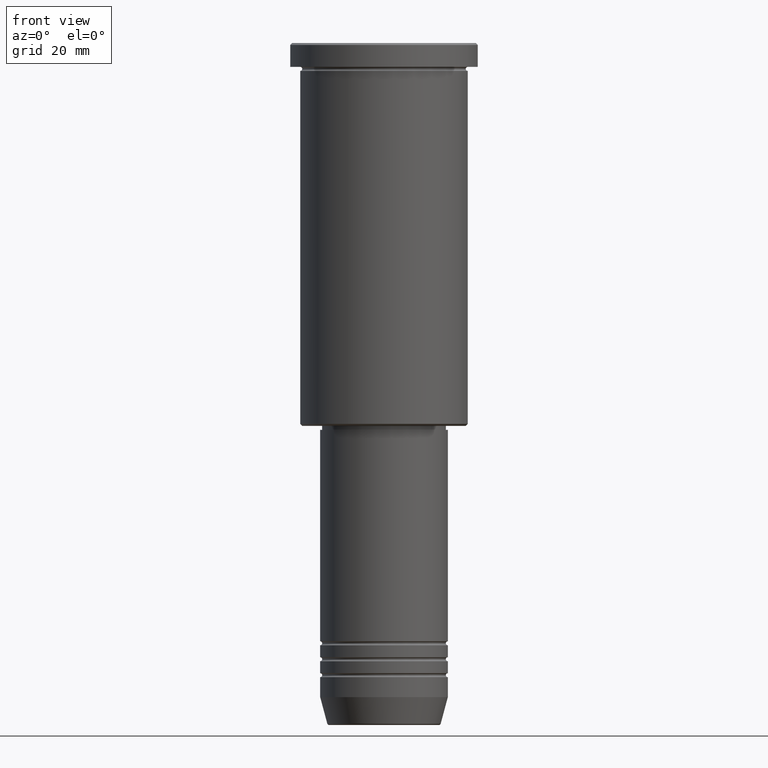
[diagram: clean part render]
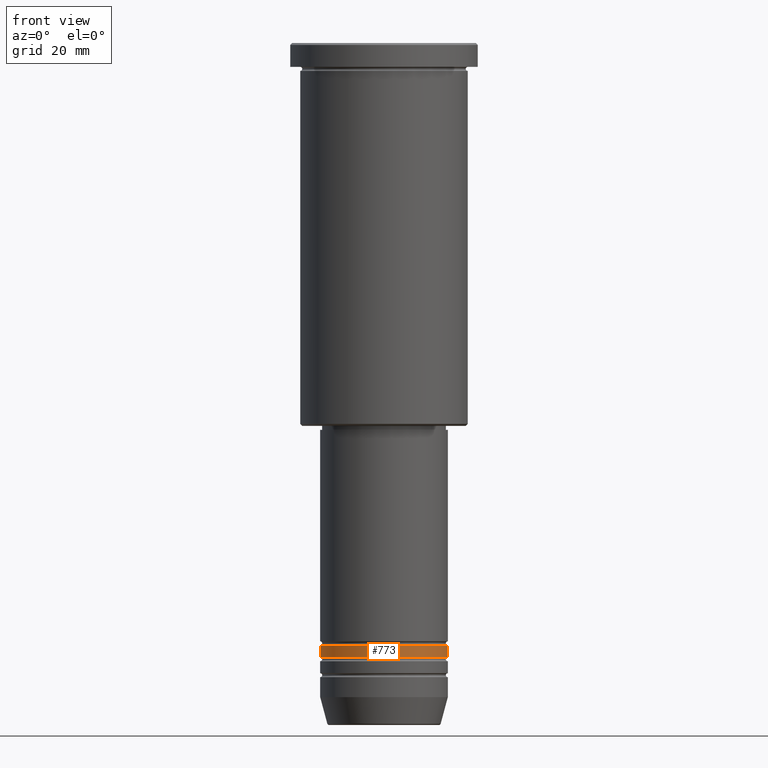
[diagram: same view with one face highlighted and labeled with its STEP entity id]
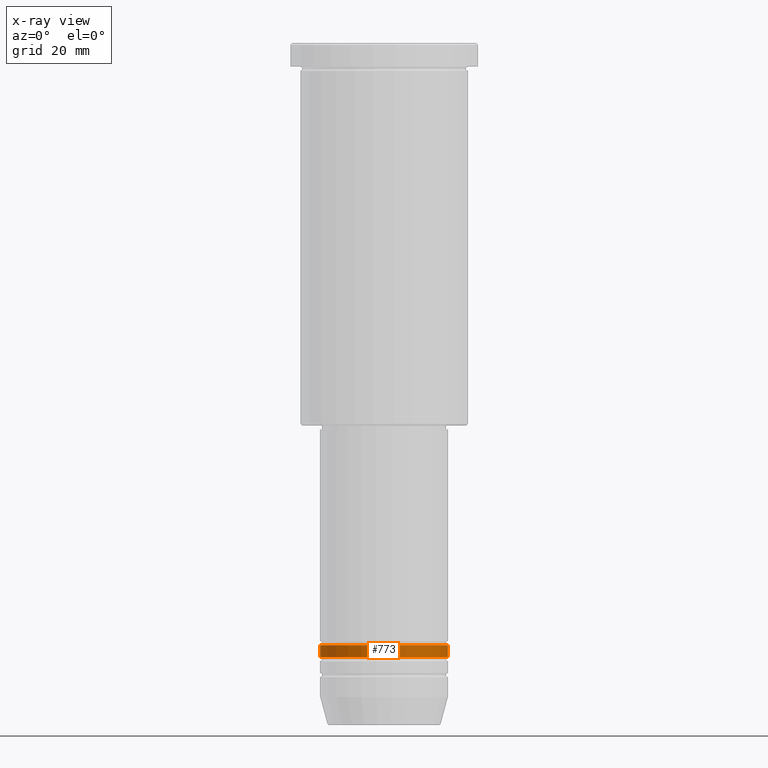
[diagram: x-ray of the same camera — body ghosted, the highlighted face saturated]
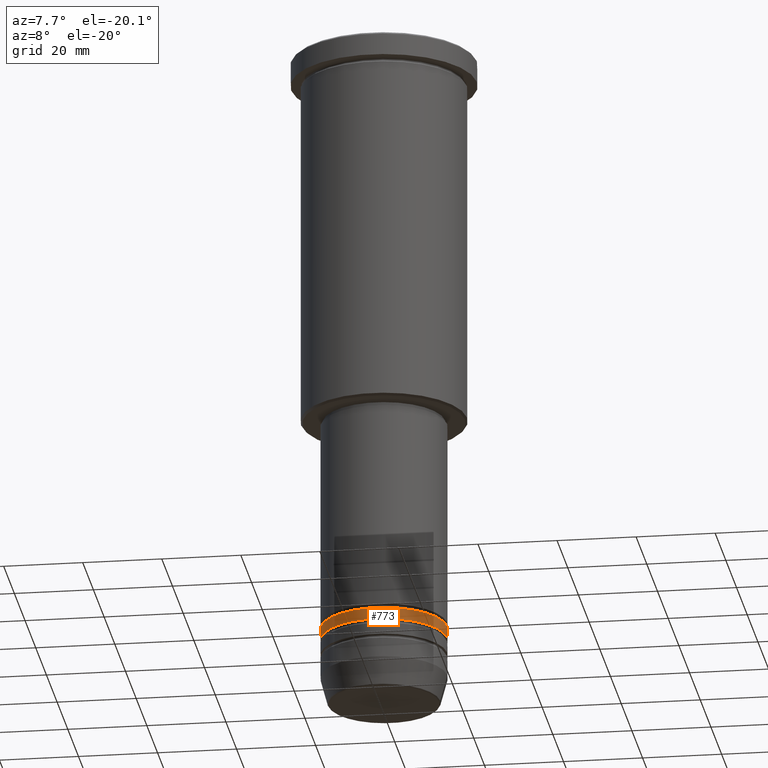
[diagram: same view with one face highlighted and labeled with its STEP entity id]
A machine part, front view. The second image highlights one B-rep face of the part: STEP entity #773.
The next image is the same camera in x-ray: the body ghosted, the highlighted face saturated — about 0% of this face is hidden behind the body in this view.
A second angle (auxiliary view) of the same face is appended — the face is thin or edge-on in the first view.
In plain terms, the highlighted cylindrical surface (partial cylindrical patch) has radius 16 mm, axis along (-0, -0, 1).
Its self-contained STEP definition (entity closure, byte-faithful):
#29 = VERTEX_POINT ( 'NONE', #211 ) ;
#53 = CIRCLE ( 'NONE', #713, 16.00000000000000355 ) ;
#65 = ORIENTED_EDGE ( 'NONE', *, *, #813, .F. ) ;
#71 = VERTEX_POINT ( 'NONE', #946 ) ;
#83 = DIRECTION ( 'NONE',  ( 1.000000000000000000, 0.000000000000000000, 0.000000000000000000 ) ) ;
#89 = FACE_OUTER_BOUND ( 'NONE', #102, .T. ) ;
#102 = EDGE_LOOP ( 'NONE', ( #65, #839, #454, #821 ) ) ;
#144 = DIRECTION ( 'NONE',  ( 1.000000000000000000, 0.000000000000000000, 0.000000000000000000 ) ) ;
#182 = CARTESIAN_POINT ( 'NONE',  ( 0.000000000000000000, 0.000000000000000000, 0.000000000000000000 ) ) ;
#211 = CARTESIAN_POINT ( 'NONE',  ( 16.00000000000000355, 0.000000000000000000, -153.9999999999998863 ) ) ;
#225 = VECTOR ( 'NONE', #233, 1000.000000000000000 ) ;
#233 = DIRECTION ( 'NONE',  ( -0.000000000000000000, -0.000000000000000000, 1.000000000000000000 ) ) ;
#261 = DIRECTION ( 'NONE',  ( -0.000000000000000000, -0.000000000000000000, 1.000000000000000000 ) ) ;
#266 = VECTOR ( 'NONE', #1164, 1000.000000000000000 ) ;
#306 = EDGE_CURVE ( 'NONE', #486, #29, #53, .T. ) ;
#344 = EDGE_CURVE ( 'NONE', #29, #831, #1145, .T. ) ;
#446 = CARTESIAN_POINT ( 'NONE',  ( 0.000000000000000000, 0.000000000000000000, -150.9999999999998579 ) ) ;
#454 = ORIENTED_EDGE ( 'NONE', *, *, #344, .T. ) ;
#486 = VERTEX_POINT ( 'NONE', #1159 ) ;
#598 = CARTESIAN_POINT ( 'NONE',  ( 0.000000000000000000, 0.000000000000000000, -153.9999999999998863 ) ) ;
#603 = DIRECTION ( 'NONE',  ( -0.000000000000000000, -0.000000000000000000, 1.000000000000000000 ) ) ;
#622 = CARTESIAN_POINT ( 'NONE',  ( -16.00000000000000000, 1.959434878635765131E-15, 0.000000000000000000 ) ) ;
#713 = AXIS2_PLACEMENT_3D ( 'NONE', #598, #603, #144 ) ;
#750 = EDGE_CURVE ( 'NONE', #71, #831, #823, .T. ) ;
#767 = AXIS2_PLACEMENT_3D ( 'NONE', #446, #811, #83 ) ;
#773 = ADVANCED_FACE ( 'NONE', ( #89 ), #1174, .T. ) ;
#811 = DIRECTION ( 'NONE',  ( -0.000000000000000000, -0.000000000000000000, 1.000000000000000000 ) ) ;
#813 = EDGE_CURVE ( 'NONE', #486, #71, #1170, .T. ) ;
#821 = ORIENTED_EDGE ( 'NONE', *, *, #750, .F. ) ;
#823 = CIRCLE ( 'NONE', #767, 16.00000000000000000 ) ;
#831 = VERTEX_POINT ( 'NONE', #986 ) ;
#839 = ORIENTED_EDGE ( 'NONE', *, *, #306, .T. ) ;
#907 = DIRECTION ( 'NONE',  ( 1.000000000000000000, 0.000000000000000000, 0.000000000000000000 ) ) ;
#946 = CARTESIAN_POINT ( 'NONE',  ( -16.00000000000000000, 1.959434878635765131E-15, -150.9999999999998579 ) ) ;
#960 = CARTESIAN_POINT ( 'NONE',  ( 16.00000000000000000, 0.000000000000000000, 0.000000000000000000 ) ) ;
#986 = CARTESIAN_POINT ( 'NONE',  ( 16.00000000000000000, 0.000000000000000000, -150.9999999999998579 ) ) ;
#991 = AXIS2_PLACEMENT_3D ( 'NONE', #182, #261, #907 ) ;
#1145 = LINE ( 'NONE', #960, #225 ) ;
#1159 = CARTESIAN_POINT ( 'NONE',  ( -16.00000000000000355, 1.959434878635765526E-15, -153.9999999999998863 ) ) ;
#1164 = DIRECTION ( 'NONE',  ( -0.000000000000000000, -0.000000000000000000, 1.000000000000000000 ) ) ;
#1170 = LINE ( 'NONE', #622, #266 ) ;
#1174 = CYLINDRICAL_SURFACE ( 'NONE', #991, 16.00000000000000000 ) ;